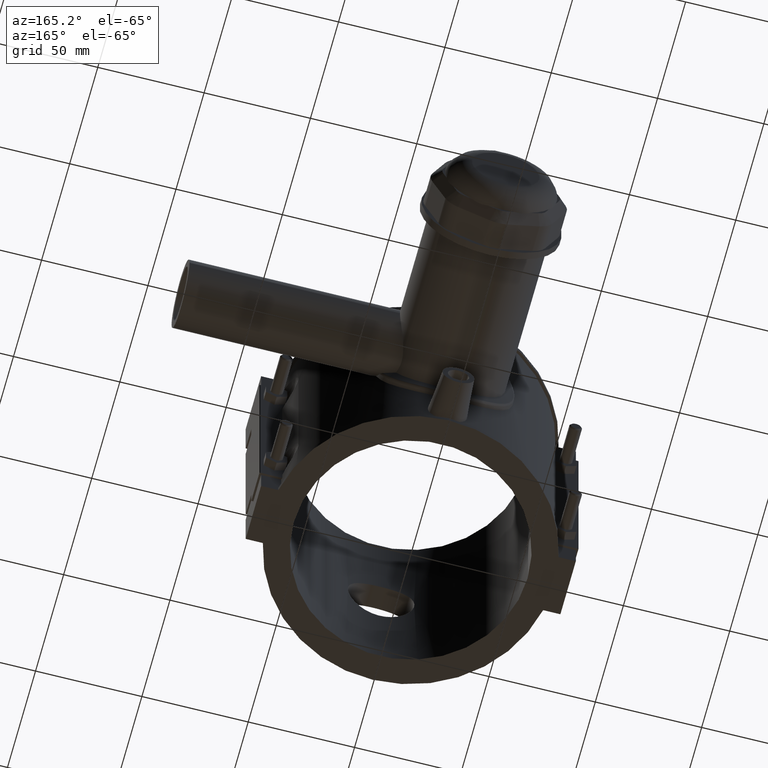
[diagram: clean part render]
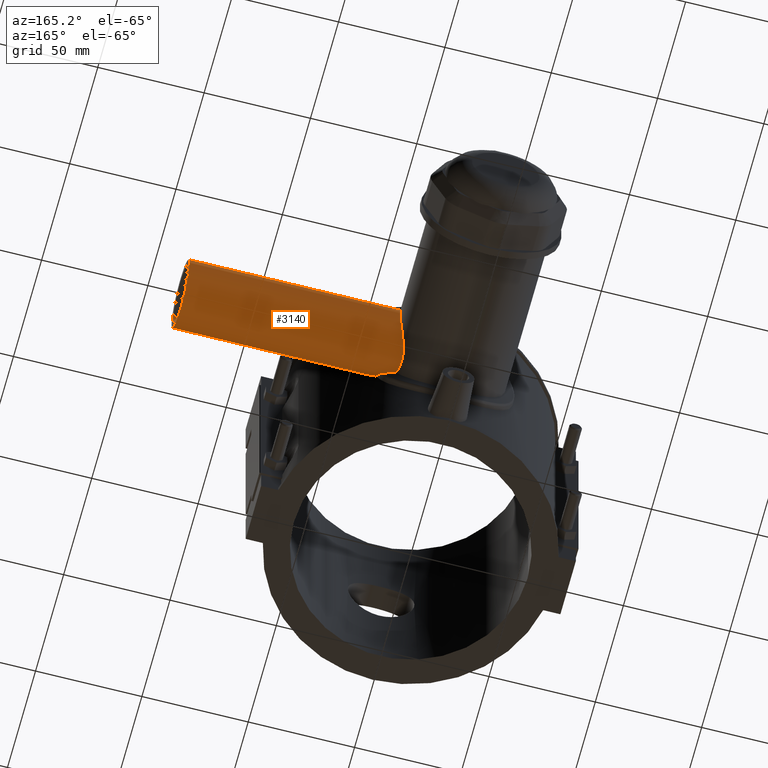
[diagram: same view with one face highlighted and labeled with its STEP entity id]
A machine part, auxiliary view. The second image highlights one B-rep face of the part: STEP entity #3140.
In plain terms, the highlighted cylindrical surface (bore or boss wall) has radius 16 mm, axis along (1, 0, 0).
Its self-contained STEP definition (entity closure, byte-faithful):
#732=CIRCLE('',#3333,16.);
#844=FACE_BOUND('',#1087,.T.);
#895=FACE_OUTER_BOUND('',#1086,.T.);
#1086=EDGE_LOOP('',(#2156));
#1087=EDGE_LOOP('',(#2157,#2158,#2159,#2160,#2161,#2162,#2163,#2164));
#1321=B_SPLINE_CURVE_WITH_KNOTS('',3,(#4629,#4630,#4631,#4632,#4633,#4634),
 .UNSPECIFIED.,.F.,.F.,(4,2,4),(5.6558781148975,5.97482253424025,6.24245504653394),
 .UNSPECIFIED.);
#1322=B_SPLINE_CURVE_WITH_KNOTS('',3,(#4636,#4637,#4638,#4639,#4640,#4641,
#4642,#4643),.UNSPECIFIED.,.F.,.F.,(4,2,2,4),(-0.184415352742959,-0.103664773998157,
-0.0245609281118141,0.),.UNSPECIFIED.);
#1323=B_SPLINE_CURVE_WITH_KNOTS('',3,(#4645,#4646,#4647,#4648,#4649,#4650),
 .UNSPECIFIED.,.F.,.F.,(4,2,4),(8.31578580700587,8.59712544666589,8.73673920598325),
 .UNSPECIFIED.);
#1324=B_SPLINE_CURVE_WITH_KNOTS('',3,(#4652,#4653,#4654,#4655,#4656,#4657,
#4658,#4659,#4660,#4661,#4662,#4663,#4664,#4665,#4666,#4667,#4668,#4669),
 .UNSPECIFIED.,.F.,.F.,(4,2,2,2,2,2,2,2,4),(2.01424933458935,2.27904843866605,
2.68926042526381,2.89436641856269,3.09947241186157,3.30457840516045,3.50968439845933,
3.9198963850571,4.18469548913379),.UNSPECIFIED.);
#1325=B_SPLINE_CURVE_WITH_KNOTS('',3,(#4671,#4672,#4673,#4674,#4675,#4676),
 .UNSPECIFIED.,.F.,.F.,(4,2,4),(6.003688353463,6.1433021117543,6.42464175141431),
 .UNSPECIFIED.);
#1326=B_SPLINE_CURVE_WITH_KNOTS('',3,(#4678,#4679,#4680,#4681,#4682,#4683,
#4684,#4685),.UNSPECIFIED.,.F.,.F.,(4,2,2,4),(-0.201162855761642,-0.138094538060078,
-0.0695925453391489,0.),.UNSPECIFIED.);
#1327=B_SPLINE_CURVE_WITH_KNOTS('',3,(#4687,#4688,#4689,#4690,#4691,#4692),
 .UNSPECIFIED.,.F.,.F.,(4,2,4),(1.09915780196787,1.36679031426156,1.68573473409589),
 .UNSPECIFIED.);
#1328=B_SPLINE_CURVE_WITH_KNOTS('',3,(#4693,#4694,#4695,#4696,#4697,#4698,
#4699,#4700,#4701,#4702,#4703,#4704,#4705,#4706,#4707,#4708,#4709,#4710,
#4711,#4712,#4713,#4714,#4715,#4716,#4717,#4718,#4719,#4720,#4721,#4722,
#4723,#4724,#4725,#4726,#4727,#4728,#4729,#4730,#4731,#4732,#4733,#4734,
#4735),.UNSPECIFIED.,.F.,.F.,(4,2,2,2,2,2,2,2,2,2,2,2,2,2,2,2,2,3,2,2,4),
(4.28209447142531,4.33517436823551,4.64572542810685,4.95627648797818,5.26682754784952,
5.57737860772085,6.19848072746352,6.50746422858946,6.8164477297154,7.12543123084134,
7.43441473196727,7.74339823309321,8.05238173421915,8.36136523534509,8.67034873647103,
9.2914508562137,9.60200191608503,9.91255297595637,10.2231040358277,10.533655095699,
10.5867349925092),.UNSPECIFIED.);
#1385=VERTEX_POINT('',#4625);
#1386=VERTEX_POINT('',#4627);
#1387=VERTEX_POINT('',#4628);
#1388=VERTEX_POINT('',#4635);
#1389=VERTEX_POINT('',#4644);
#1390=VERTEX_POINT('',#4651);
#1391=VERTEX_POINT('',#4670);
#1392=VERTEX_POINT('',#4677);
#1393=VERTEX_POINT('',#4686);
#1694=EDGE_CURVE('',#1385,#1385,#732,.T.);
#1695=EDGE_CURVE('',#1386,#1387,#1321,.T.);
#1696=EDGE_CURVE('',#1388,#1386,#1322,.T.);
#1697=EDGE_CURVE('',#1389,#1388,#1323,.T.);
#1698=EDGE_CURVE('',#1390,#1389,#1324,.T.);
#1699=EDGE_CURVE('',#1391,#1390,#1325,.T.);
#1700=EDGE_CURVE('',#1392,#1391,#1326,.T.);
#1701=EDGE_CURVE('',#1393,#1392,#1327,.T.);
#1702=EDGE_CURVE('',#1387,#1393,#1328,.T.);
#2156=ORIENTED_EDGE('',*,*,#1694,.F.);
#2157=ORIENTED_EDGE('',*,*,#1695,.F.);
#2158=ORIENTED_EDGE('',*,*,#1696,.F.);
#2159=ORIENTED_EDGE('',*,*,#1697,.F.);
#2160=ORIENTED_EDGE('',*,*,#1698,.F.);
#2161=ORIENTED_EDGE('',*,*,#1699,.F.);
#2162=ORIENTED_EDGE('',*,*,#1700,.F.);
#2163=ORIENTED_EDGE('',*,*,#1701,.F.);
#2164=ORIENTED_EDGE('',*,*,#1702,.F.);
#3092=CYLINDRICAL_SURFACE('',#3332,16.);
#3140=ADVANCED_FACE('',(#895,#844),#3092,.T.);
#3332=AXIS2_PLACEMENT_3D('',#4624,#3633,#3634);
#3333=AXIS2_PLACEMENT_3D('',#4626,#3635,#3636);
#3633=DIRECTION('center_axis',(1.,0.,0.));
#3634=DIRECTION('ref_axis',(0.,1.,0.));
#3635=DIRECTION('center_axis',(1.,0.,0.));
#3636=DIRECTION('ref_axis',(0.,0.,-1.));
#4624=CARTESIAN_POINT('Origin',(63.5,71.,0.));
#4625=CARTESIAN_POINT('',(127.,87.,0.));
#4626=CARTESIAN_POINT('Origin',(127.,71.,0.));
#4627=CARTESIAN_POINT('',(29.5089868763769,61.973133644273,13.2104384435024));
#4628=CARTESIAN_POINT('',(23.9905243937049,64.3109970328539,14.5346908914359));
#4629=CARTESIAN_POINT('Ctrl Pts',(29.5089868750144,61.973133643622,13.2104384402673));
#4630=CARTESIAN_POINT('Ctrl Pts',(28.5574182204942,62.4262304177561,13.5200454260693));
#4631=CARTESIAN_POINT('Ctrl Pts',(27.5747159253559,62.8671293542059,13.7872751500558));
#4632=CARTESIAN_POINT('Ctrl Pts',(25.7237864945072,63.6441304382625,14.2145991289185));
#4633=CARTESIAN_POINT('Ctrl Pts',(24.8628695371758,63.985578077589,14.3849299934735));
#4634=CARTESIAN_POINT('Ctrl Pts',(23.9905243935499,64.3109970325643,14.5346908911623));
#4635=CARTESIAN_POINT('',(30.6457793620116,60.6964184428605,12.2407600753073));
#4636=CARTESIAN_POINT('Ctrl Pts',(30.6457793642662,60.6964184458371,12.2407600726717));
#4637=CARTESIAN_POINT('Ctrl Pts',(30.56955949821,60.9231179822651,12.4315829585064));
#4638=CARTESIAN_POINT('Ctrl Pts',(30.4441014928883,61.1493291945423,12.6107361218984));
#4639=CARTESIAN_POINT('Ctrl Pts',(30.1162953704284,61.5562758363787,12.918195500442));
#4640=CARTESIAN_POINT('Ctrl Pts',(29.9226923779418,61.7290593199917,13.041294068043));
#4641=CARTESIAN_POINT('Ctrl Pts',(29.6481311056866,61.9014731701666,13.1612798139191));
#4642=CARTESIAN_POINT('Ctrl Pts',(29.5799079848066,61.9393640086954,13.1873632045082));
#4643=CARTESIAN_POINT('Ctrl Pts',(29.5089868794142,61.973133641527,13.2104384388357));
#4644=CARTESIAN_POINT('',(31.7002912232571,57.8886131916407,9.17014374271234));
#4645=CARTESIAN_POINT('Ctrl Pts',(31.7002912262045,57.8886131997345,9.17014373790416));
#4646=CARTESIAN_POINT('Ctrl Pts',(31.4739945715121,58.4357460062442,9.95242917009557));
#4647=CARTESIAN_POINT('Ctrl Pts',(31.2343353061018,59.0442036754532,10.6716206734227));
#4648=CARTESIAN_POINT('Ctrl Pts',(30.8837119679787,60.0049252180661,11.6323422160356));
#4649=CARTESIAN_POINT('Ctrl Pts',(30.7648998091784,60.3421203939062,11.9425319519604));
#4650=CARTESIAN_POINT('Ctrl Pts',(30.6457793642662,60.6964184458371,12.2407600726717));
#4651=CARTESIAN_POINT('',(31.7002912232571,57.8886131916407,-9.17014374271234));
#4652=CARTESIAN_POINT('Ctrl Pts',(31.7002912098478,57.8886131912905,-9.170143725831));
#4653=CARTESIAN_POINT('Ctrl Pts',(32.3388892609101,57.5389115303123,-8.67014352061967));
#4654=CARTESIAN_POINT('Ctrl Pts',(32.9376066921178,57.1972191633388,-8.12154618355632));
#4655=CARTESIAN_POINT('Ctrl Pts',(34.3403864715032,56.3712386767378,-6.56828140001641));
#4656=CARTESIAN_POINT('Ctrl Pts',(35.1293428838109,55.8778602944426,-5.39707668383061));
#4657=CARTESIAN_POINT('Ctrl Pts',(35.9335039522635,55.361401361708,-3.44762972485401));
#4658=CARTESIAN_POINT('Ctrl Pts',(36.1409754597284,55.2255097530362,-2.76605827595642));
#4659=CARTESIAN_POINT('Ctrl Pts',(36.4156854427931,55.0447535035485,-1.38409909377849));
#4660=CARTESIAN_POINT('Ctrl Pts',(36.4828726939094,55.,-0.683686644329605));
#4661=CARTESIAN_POINT('Ctrl Pts',(36.4828726939094,55.,0.683686644329605));
#4662=CARTESIAN_POINT('Ctrl Pts',(36.4156854427931,55.0447535035485,1.38409909377849));
#4663=CARTESIAN_POINT('Ctrl Pts',(36.1409754597284,55.2255097530362,2.76605827595642));
#4664=CARTESIAN_POINT('Ctrl Pts',(35.9335039522635,55.361401361708,3.44762972485402));
#4665=CARTESIAN_POINT('Ctrl Pts',(35.1293428838109,55.8778602944426,5.39707668383062));
#4666=CARTESIAN_POINT('Ctrl Pts',(34.3403864715032,56.3712386767378,6.56828140001642));
#4667=CARTESIAN_POINT('Ctrl Pts',(32.9376066921178,57.1972191633388,8.12154618355632));
#4668=CARTESIAN_POINT('Ctrl Pts',(32.3388892609101,57.5389115303123,8.67014352061968));
#4669=CARTESIAN_POINT('Ctrl Pts',(31.7002912098478,57.8886131912905,9.170143725831));
#4670=CARTESIAN_POINT('',(30.6457793668929,60.6964184380247,-12.2407600660957));
#4671=CARTESIAN_POINT('Ctrl Pts',(30.6457793668929,60.6964184380247,-12.2407600660957));
#4672=CARTESIAN_POINT('Ctrl Pts',(30.7648998109252,60.342120388949,-11.9425319474013));
#4673=CARTESIAN_POINT('Ctrl Pts',(30.8837119688333,60.0049252157244,-11.6323422136939));
#4674=CARTESIAN_POINT('Ctrl Pts',(31.2343353061018,59.0442036754532,-10.6716206734227));
#4675=CARTESIAN_POINT('Ctrl Pts',(31.4739945715121,58.4357460062442,-9.95242917009557));
#4676=CARTESIAN_POINT('Ctrl Pts',(31.7002912262045,57.8886131997345,-9.17014373790417));
#4677=CARTESIAN_POINT('',(29.5089868794143,61.9731336415269,-13.2104384388357));
#4678=CARTESIAN_POINT('Ctrl Pts',(29.5089868794143,61.9731336415269,-13.2104384388357));
#4679=CARTESIAN_POINT('Ctrl Pts',(29.6899170831144,61.8869823257332,-13.1515701114991));
#4680=CARTESIAN_POINT('Ctrl Pts',(29.8541362716813,61.7738559884217,-13.0729497552185));
#4681=CARTESIAN_POINT('Ctrl Pts',(30.1516549054481,61.5129903475621,-12.885055874933));
#4682=CARTESIAN_POINT('Ctrl Pts',(30.2843712835217,61.3603138369613,-12.7717275855579));
#4683=CARTESIAN_POINT('Ctrl Pts',(30.502098451372,61.0393057501965,-12.5230366561149));
#4684=CARTESIAN_POINT('Ctrl Pts',(30.5879916268221,60.8682955975996,-12.3854365667997));
#4685=CARTESIAN_POINT('Ctrl Pts',(30.6457793668929,60.6964184380247,-12.2407600660956));
#4686=CARTESIAN_POINT('',(23.9905243937049,64.3109970328539,-14.5346908914359));
#4687=CARTESIAN_POINT('Ctrl Pts',(23.9905243935499,64.3109970325643,-14.5346908911623));
#4688=CARTESIAN_POINT('Ctrl Pts',(24.8628695371758,63.985578077589,-14.3849299934735));
#4689=CARTESIAN_POINT('Ctrl Pts',(25.7237864945072,63.6441304382625,-14.2145991289185));
#4690=CARTESIAN_POINT('Ctrl Pts',(27.5747159269071,62.8671293535547,-13.7872751496976));
#4691=CARTESIAN_POINT('Ctrl Pts',(28.5574182235234,62.4262304163967,-13.5200454252458));
#4692=CARTESIAN_POINT('Ctrl Pts',(29.5089868794143,61.9731336415269,-13.2104384388357));
#4693=CARTESIAN_POINT('Ctrl Pts',(23.9905243938187,64.3109970331589,14.5346908914359));
#4694=CARTESIAN_POINT('Ctrl Pts',(23.9446218895465,64.4756292143582,14.6104561868044));
#4695=CARTESIAN_POINT('Ctrl Pts',(23.8998647656396,64.6417603145345,14.6835209648305));
#4696=CARTESIAN_POINT('Ctrl Pts',(23.6021044741755,65.7892030869987,15.1649904395506));
#4697=CARTESIAN_POINT('Ctrl Pts',(23.3927977714076,66.8178575919416,15.4804057144208));
#4698=CARTESIAN_POINT('Ctrl Pts',(23.1110178156845,68.9056095946117,15.898012598836));
#4699=CARTESIAN_POINT('Ctrl Pts',(23.039151460069,69.9648298004289,16.));
#4700=CARTESIAN_POINT('Ctrl Pts',(23.039151460069,72.0351701995711,16.));
#4701=CARTESIAN_POINT('Ctrl Pts',(23.1110178156845,73.0943904053883,15.898012598836));
#4702=CARTESIAN_POINT('Ctrl Pts',(23.3927977714076,75.1821424080584,15.4804057144208));
#4703=CARTESIAN_POINT('Ctrl Pts',(23.6021044741755,76.2107969130013,15.1649904395506));
#4704=CARTESIAN_POINT('Ctrl Pts',(24.3649914539775,79.1506420712549,13.9314250382338));
#4705=CARTESIAN_POINT('Ctrl Pts',(25.0510898112233,80.9160709652818,12.7113460326877));
#4706=CARTESIAN_POINT('Ctrl Pts',(25.9736226608422,83.0089998604882,10.6184171374813));
#4707=CARTESIAN_POINT('Ctrl Pts',(26.2863791401543,83.6659688929031,9.8313349954734));
#4708=CARTESIAN_POINT('Ctrl Pts',(26.8677848428798,84.8322414001578,8.10869987809142));
#4709=CARTESIAN_POINT('Ctrl Pts',(27.136034379229,85.3416313090193,7.17307054792145));
#4710=CARTESIAN_POINT('Ctrl Pts',(27.5806824786479,86.1661490837021,5.20799953082931));
#4711=CARTESIAN_POINT('Ctrl Pts',(27.7572206257607,86.4819409423101,4.17659692948142));
#4712=CARTESIAN_POINT('Ctrl Pts',(27.9919491014086,86.8989437690669,2.0875929408263));
#4713=CARTESIAN_POINT('Ctrl Pts',(28.05,87.,1.02994500375313));
#4714=CARTESIAN_POINT('Ctrl Pts',(28.05,87.,-1.02994500375312));
#4715=CARTESIAN_POINT('Ctrl Pts',(27.9919491014086,86.8989437690669,-2.08759294082629));
#4716=CARTESIAN_POINT('Ctrl Pts',(27.7572206257607,86.4819409423101,-4.17659692948141));
#4717=CARTESIAN_POINT('Ctrl Pts',(27.5806824786479,86.1661490837021,-5.2079995308293));
#4718=CARTESIAN_POINT('Ctrl Pts',(27.136034379229,85.3416313090193,-7.17307054792145));
#4719=CARTESIAN_POINT('Ctrl Pts',(26.8677848428798,84.8322414001578,-8.10869987809141));
#4720=CARTESIAN_POINT('Ctrl Pts',(26.2863791401543,83.6659688929031,-9.83133499547341));
#4721=CARTESIAN_POINT('Ctrl Pts',(25.9736226608422,83.0089998604882,-10.6184171374813));
#4722=CARTESIAN_POINT('Ctrl Pts',(25.0510898112234,80.9160709652818,-12.7113460326877));
#4723=CARTESIAN_POINT('Ctrl Pts',(24.3649914539775,79.1506420712549,-13.9314250382338));
#4724=CARTESIAN_POINT('Ctrl Pts',(23.6021044741755,76.2107969130013,-15.1649904395506));
#4725=CARTESIAN_POINT('Ctrl Pts',(23.3927977714076,75.1821424080584,-15.4804057144208));
#4726=CARTESIAN_POINT('Ctrl Pts',(23.1110178156845,73.0943904053883,-15.898012598836));
#4727=CARTESIAN_POINT('Ctrl Pts',(23.039151460069,72.0351701995711,-16.));
#4728=CARTESIAN_POINT('Ctrl Pts',(23.039151460069,71.,-16.));
#4729=CARTESIAN_POINT('Ctrl Pts',(23.039151460069,69.9648298004289,-16.));
#4730=CARTESIAN_POINT('Ctrl Pts',(23.1110178156845,68.9056095946117,-15.898012598836));
#4731=CARTESIAN_POINT('Ctrl Pts',(23.3927977714076,66.8178575919416,-15.4804057144208));
#4732=CARTESIAN_POINT('Ctrl Pts',(23.6021044741755,65.7892030869987,-15.1649904395506));
#4733=CARTESIAN_POINT('Ctrl Pts',(23.8998647656396,64.6417603145345,-14.6835209648305));
#4734=CARTESIAN_POINT('Ctrl Pts',(23.9446218895465,64.4756292143582,-14.6104561868044));
#4735=CARTESIAN_POINT('Ctrl Pts',(23.9905243938187,64.3109970331589,-14.5346908914359));